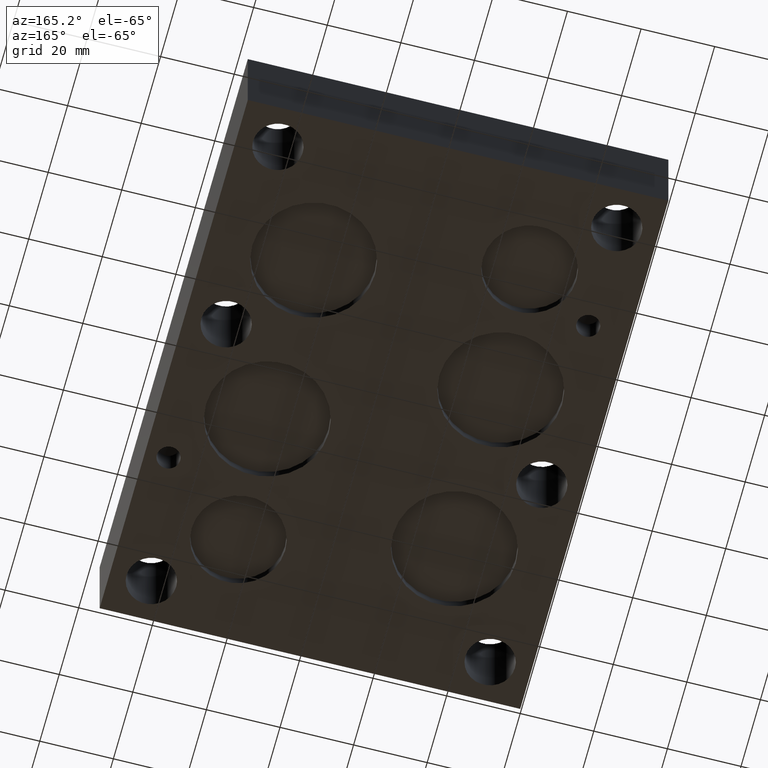
[diagram: clean part render]
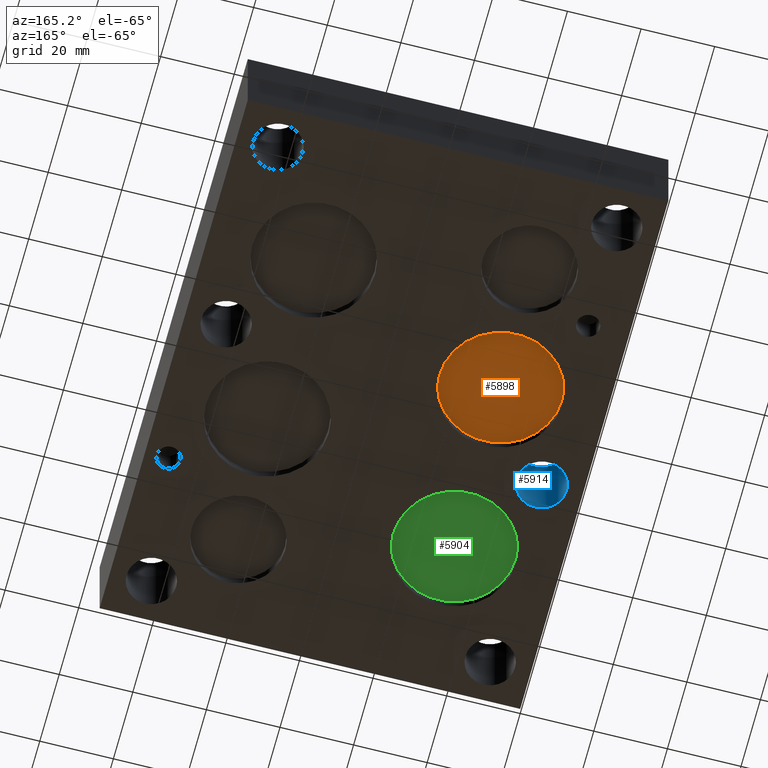
[diagram: same view with three faces highlighted in distinct colors, each labeled with its STEP entity id]
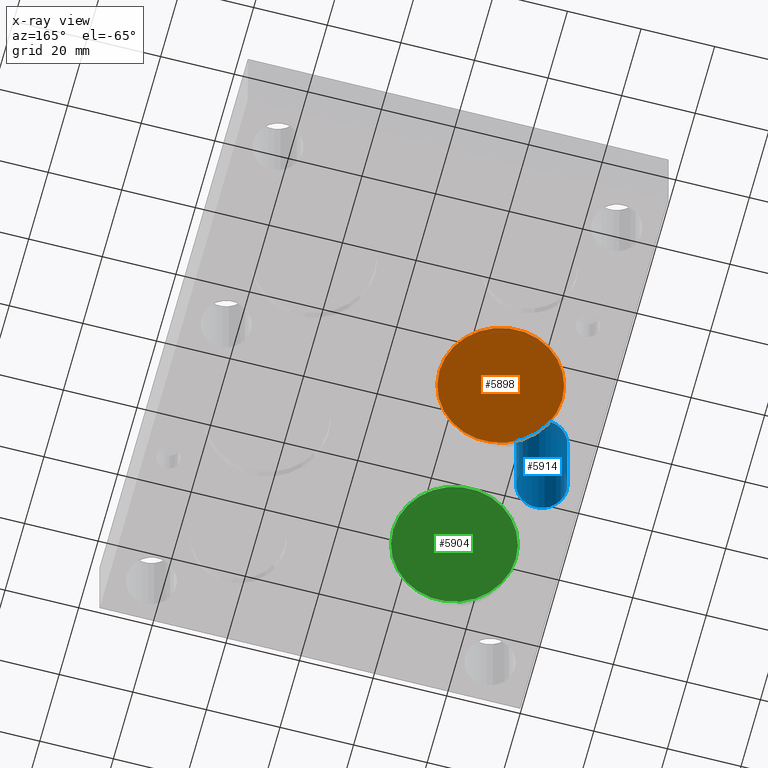
[diagram: x-ray of the same camera — body ghosted, the three highlighted faces saturated]
A machine part, auxiliary view with three faces highlighted in distinct colors.
The next image is the same camera in x-ray (body ghosted, the three faces saturated) — at least one of them is partly hidden behind the body in this view.
Their STEP definitions:

[orange] entity #5898 — the highlighted planar face has unit normal (0, 0, -1).
#21=CIRCLE('',#6139,16.6751);
#299=PLANE('',#6140);
#587=FACE_OUTER_BOUND('',#913,.T.);
#913=EDGE_LOOP('',(#5179));
#2847=VERTEX_POINT('',#9867);
#3632=EDGE_CURVE('',#2847,#2847,#21,.T.);
#5179=ORIENTED_EDGE('',*,*,#3632,.T.);
#5898=ADVANCED_FACE('',(#587),#299,.T.);
#6139=AXIS2_PLACEMENT_3D('',#9869,#7188,#7189);
#6140=AXIS2_PLACEMENT_3D('',#9870,#7190,#7191);
#7188=DIRECTION('center_axis',(0.,0.,-1.));
#7189=DIRECTION('ref_axis',(1.,0.,0.));
#7190=DIRECTION('center_axis',(0.,0.,-1.));
#7191=DIRECTION('ref_axis',(1.,0.,0.));
#9867=CARTESIAN_POINT('',(11.8999,88.1126,2.794));
#9869=CARTESIAN_POINT('Origin',(28.575,88.1126,2.794));
#9870=CARTESIAN_POINT('Origin',(28.575,88.1126,2.794));

[blue] entity #5914 — the highlighted cylindrical surface (bore or boss wall) has radius 6.7437 mm, axis along (0, 0, -1).
#42=CIRCLE('',#6177,6.7437);
#43=CIRCLE('',#6178,6.7437);
#57=CYLINDRICAL_SURFACE('',#6176,6.7437);
#603=FACE_OUTER_BOUND('',#929,.T.);
#929=EDGE_LOOP('',(#5229,#5230,#5231,#5232));
#1561=LINE('',#9944,#2175);
#2175=VECTOR('',#7278,6.7437);
#2870=VERTEX_POINT('',#9941);
#2871=VERTEX_POINT('',#9943);
#3665=EDGE_CURVE('',#2870,#2870,#42,.T.);
#3666=EDGE_CURVE('',#2870,#2871,#1561,.T.);
#3667=EDGE_CURVE('',#2871,#2871,#43,.T.);
#5229=ORIENTED_EDGE('',*,*,#3665,.F.);
#5230=ORIENTED_EDGE('',*,*,#3666,.T.);
#5231=ORIENTED_EDGE('',*,*,#3667,.F.);
#5232=ORIENTED_EDGE('',*,*,#3666,.F.);
#5914=ADVANCED_FACE('',(#603),#57,.F.);
#6176=AXIS2_PLACEMENT_3D('',#9940,#7274,#7275);
#6177=AXIS2_PLACEMENT_3D('',#9942,#7276,#7277);
#6178=AXIS2_PLACEMENT_3D('',#9945,#7279,#7280);
#7274=DIRECTION('center_axis',(0.,0.,-1.));
#7275=DIRECTION('ref_axis',(1.,0.,0.));
#7276=DIRECTION('center_axis',(0.,0.,1.));
#7277=DIRECTION('ref_axis',(1.,0.,0.));
#7278=DIRECTION('',(0.,0.,1.));
#7279=DIRECTION('center_axis',(0.,0.,-1.));
#7280=DIRECTION('ref_axis',(1.,0.,0.));
#9940=CARTESIAN_POINT('Origin',(11.1252,64.2874,192.185873570354));
#9941=CARTESIAN_POINT('',(4.3815,64.2874,0.));
#9942=CARTESIAN_POINT('Origin',(11.1252,64.2874,0.));
#9943=CARTESIAN_POINT('',(4.3815,64.2874,25.4));
#9944=CARTESIAN_POINT('',(4.3815,64.2874,192.185873570354));
#9945=CARTESIAN_POINT('Origin',(11.1252,64.2874,25.4));

[green] entity #5904 — the highlighted planar face has unit normal (0, 0, -1).
#27=CIRCLE('',#6151,16.6751);
#302=PLANE('',#6152);
#593=FACE_OUTER_BOUND('',#919,.T.);
#919=EDGE_LOOP('',(#5194));
#2853=VERTEX_POINT('',#9888);
#3641=EDGE_CURVE('',#2853,#2853,#27,.T.);
#5194=ORIENTED_EDGE('',*,*,#3641,.T.);
#5904=ADVANCED_FACE('',(#593),#302,.T.);
#6151=AXIS2_PLACEMENT_3D('',#9890,#7215,#7216);
#6152=AXIS2_PLACEMENT_3D('',#9891,#7217,#7218);
#7215=DIRECTION('center_axis',(0.,0.,-1.));
#7216=DIRECTION('ref_axis',(1.,0.,0.));
#7217=DIRECTION('center_axis',(0.,0.,-1.));
#7218=DIRECTION('ref_axis',(1.,0.,0.));
#9888=CARTESIAN_POINT('',(11.8999,40.4622,2.794));
#9890=CARTESIAN_POINT('Origin',(28.575,40.4622,2.794));
#9891=CARTESIAN_POINT('Origin',(28.575,40.4622,2.794));